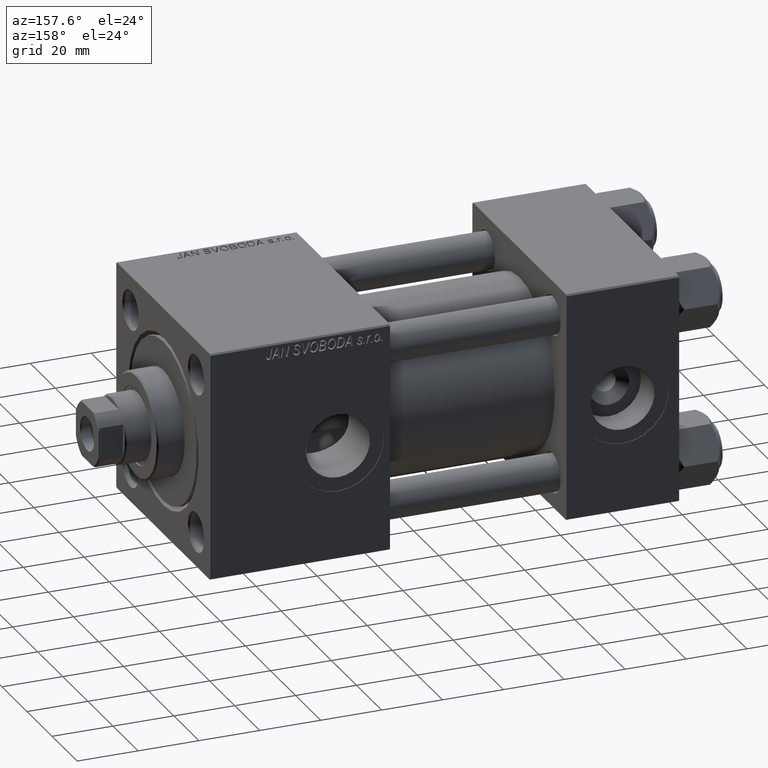
[diagram: clean part render]
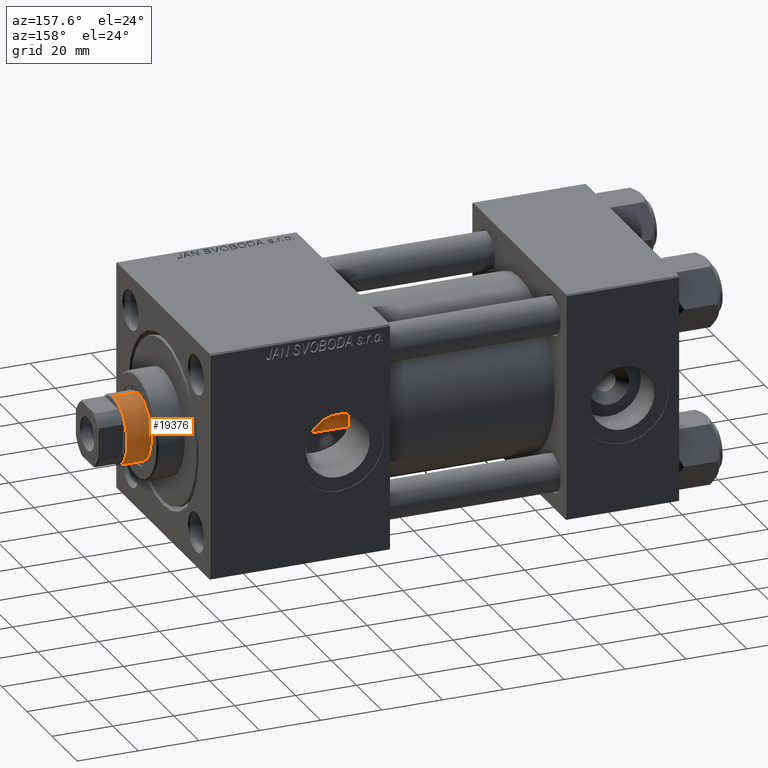
[diagram: same view with one face highlighted and labeled with its STEP entity id]
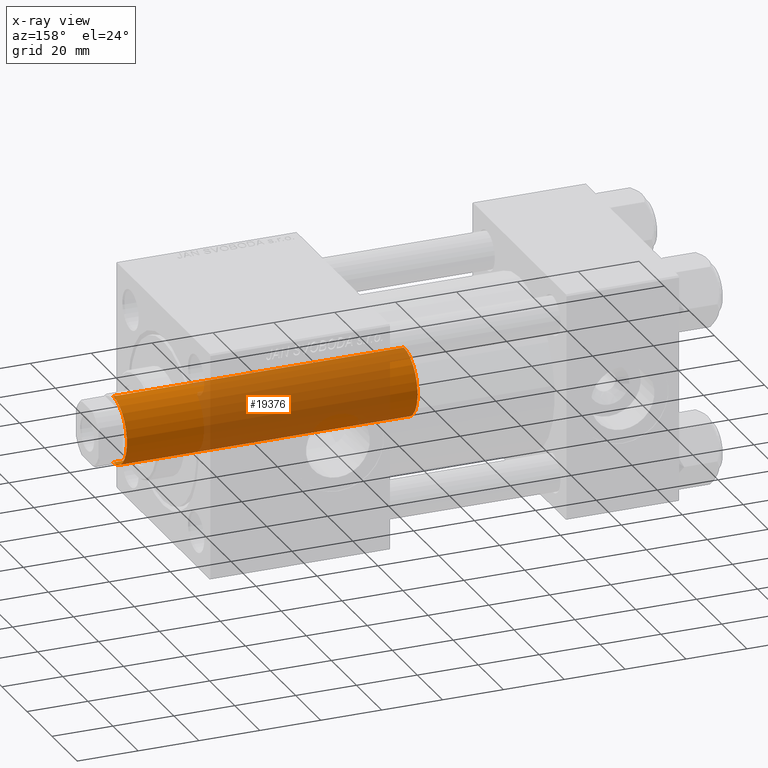
[diagram: x-ray of the same camera — body ghosted, the highlighted face saturated]
A machine part, auxiliary view. The second image highlights one B-rep face of the part: STEP entity #19376.
The next image is the same camera in x-ray: the body ghosted, the highlighted face saturated — about 64% of this face is hidden behind the body in this view.
In plain terms, the highlighted cylindrical surface (edge-blend (fillet) strip) has radius 11 mm, axis along (-1, 0, 0).
Its self-contained STEP definition (entity closure, byte-faithful):
#2410 = DIRECTION ( 'NONE',  ( 1.000000000000000000, 0.000000000000000000, 0.000000000000000000 ) ) ;
#2609 = ORIENTED_EDGE ( 'NONE', *, *, #4088, .F. ) ;
#4088 = EDGE_CURVE ( 'NONE', #48737, #45733, #24270, .T. ) ;
#4474 = AXIS2_PLACEMENT_3D ( 'NONE', #40022, #28852, #21472 ) ;
#4626 = CIRCLE ( 'NONE', #45147, 11.00000000000000000 ) ;
#5104 = EDGE_LOOP ( 'NONE', ( #2609, #13945, #9398, #33083 ) ) ;
#9398 = ORIENTED_EDGE ( 'NONE', *, *, #47974, .T. ) ;
#12858 = CYLINDRICAL_SURFACE ( 'NONE', #4474, 11.00000000000000000 ) ;
#13602 = CARTESIAN_POINT ( 'NONE',  ( 0.000000000000000000, 0.000000000000000000, 38.00000000000000000 ) ) ;
#13945 = ORIENTED_EDGE ( 'NONE', *, *, #27191, .T. ) ;
#15572 = VECTOR ( 'NONE', #18540, 1000.000000000000000 ) ;
#15898 = DIRECTION ( 'NONE',  ( -0.000000000000000000, -0.000000000000000000, -1.000000000000000000 ) ) ;
#18540 = DIRECTION ( 'NONE',  ( -0.000000000000000000, -0.000000000000000000, -1.000000000000000000 ) ) ;
#19376 = ADVANCED_FACE ( 'NONE', ( #29111 ), #12858, .T. ) ;
#21472 = DIRECTION ( 'NONE',  ( -1.000000000000000000, 0.000000000000000000, 0.000000000000000000 ) ) ;
#23641 = CARTESIAN_POINT ( 'NONE',  ( -11.00000000000000000, 0.000000000000000000, 133.5000000000000000 ) ) ;
#24270 = LINE ( 'NONE', #36431, #38636 ) ;
#26673 = CARTESIAN_POINT ( 'NONE',  ( 11.00000000000000000, 1.347111479062088405E-15, 133.5000000000000000 ) ) ;
#27191 = EDGE_CURVE ( 'NONE', #48737, #49735, #4626, .T. ) ;
#28852 = DIRECTION ( 'NONE',  ( -0.000000000000000000, -0.000000000000000000, -1.000000000000000000 ) ) ;
#29111 = FACE_OUTER_BOUND ( 'NONE', #5104, .T. ) ;
#29961 = LINE ( 'NONE', #41632, #15572 ) ;
#31606 = CIRCLE ( 'NONE', #45392, 11.00000000000000000 ) ;
#32892 = DIRECTION ( 'NONE',  ( 1.000000000000000000, 0.000000000000000000, 0.000000000000000000 ) ) ;
#33062 = CARTESIAN_POINT ( 'NONE',  ( -11.00000000000000000, 0.000000000000000000, 38.00000000000000000 ) ) ;
#33083 = ORIENTED_EDGE ( 'NONE', *, *, #38656, .T. ) ;
#33461 = CARTESIAN_POINT ( 'NONE',  ( 11.00000000000000000, 1.347111479062088405E-15, 38.00000000000000000 ) ) ;
#36431 = CARTESIAN_POINT ( 'NONE',  ( 11.00000000000000000, 1.347111479062088405E-15, 134.0000000000000000 ) ) ;
#37191 = VERTEX_POINT ( 'NONE', #33062 ) ;
#38636 = VECTOR ( 'NONE', #15898, 1000.000000000000000 ) ;
#38656 = EDGE_CURVE ( 'NONE', #37191, #45733, #31606, .T. ) ;
#40022 = CARTESIAN_POINT ( 'NONE',  ( 0.000000000000000000, 0.000000000000000000, 134.0000000000000000 ) ) ;
#41483 = DIRECTION ( 'NONE',  ( 0.000000000000000000, 0.000000000000000000, -1.000000000000000000 ) ) ;
#41632 = CARTESIAN_POINT ( 'NONE',  ( -11.00000000000000000, 0.000000000000000000, 134.0000000000000000 ) ) ;
#44303 = CARTESIAN_POINT ( 'NONE',  ( 0.000000000000000000, 0.000000000000000000, 133.5000000000000000 ) ) ;
#45147 = AXIS2_PLACEMENT_3D ( 'NONE', #44303, #41483, #2410 ) ;
#45392 = AXIS2_PLACEMENT_3D ( 'NONE', #13602, #48625, #32892 ) ;
#45733 = VERTEX_POINT ( 'NONE', #33461 ) ;
#47974 = EDGE_CURVE ( 'NONE', #49735, #37191, #29961, .T. ) ;
#48625 = DIRECTION ( 'NONE',  ( 0.000000000000000000, 0.000000000000000000, 1.000000000000000000 ) ) ;
#48737 = VERTEX_POINT ( 'NONE', #26673 ) ;
#49735 = VERTEX_POINT ( 'NONE', #23641 ) ;